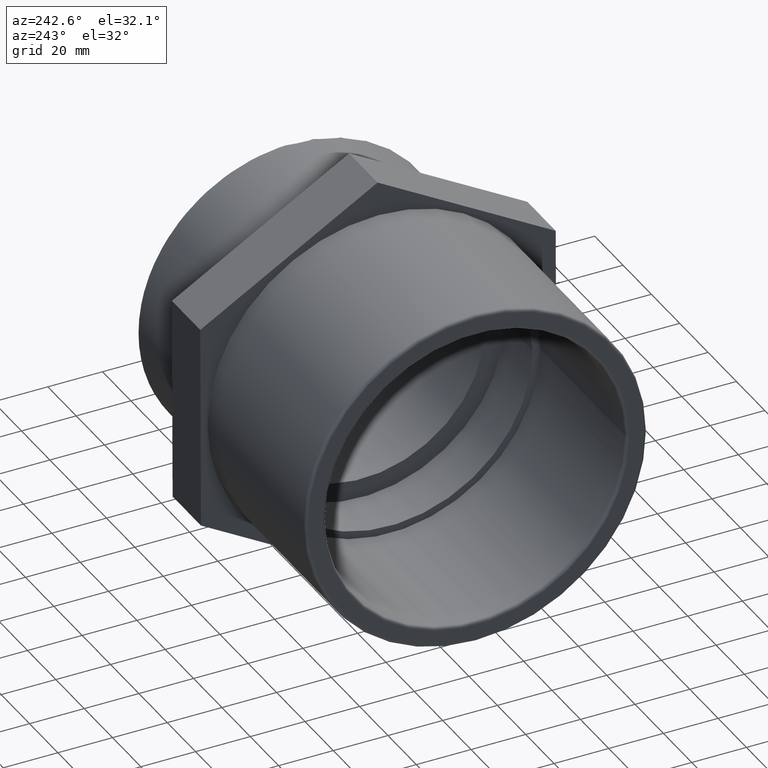
[diagram: clean part render]
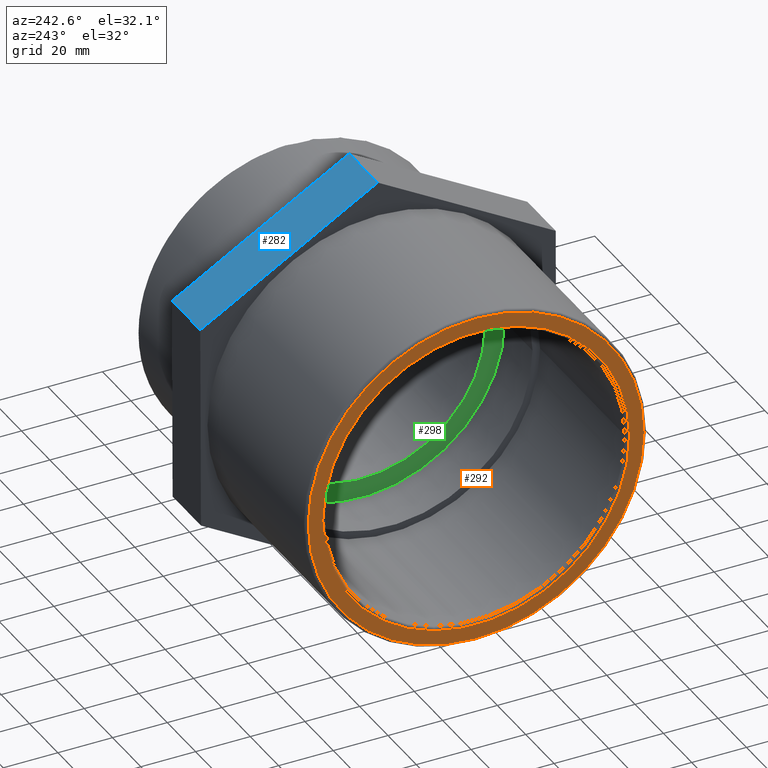
[diagram: same view with three faces highlighted in distinct colors, each labeled with its STEP entity id]
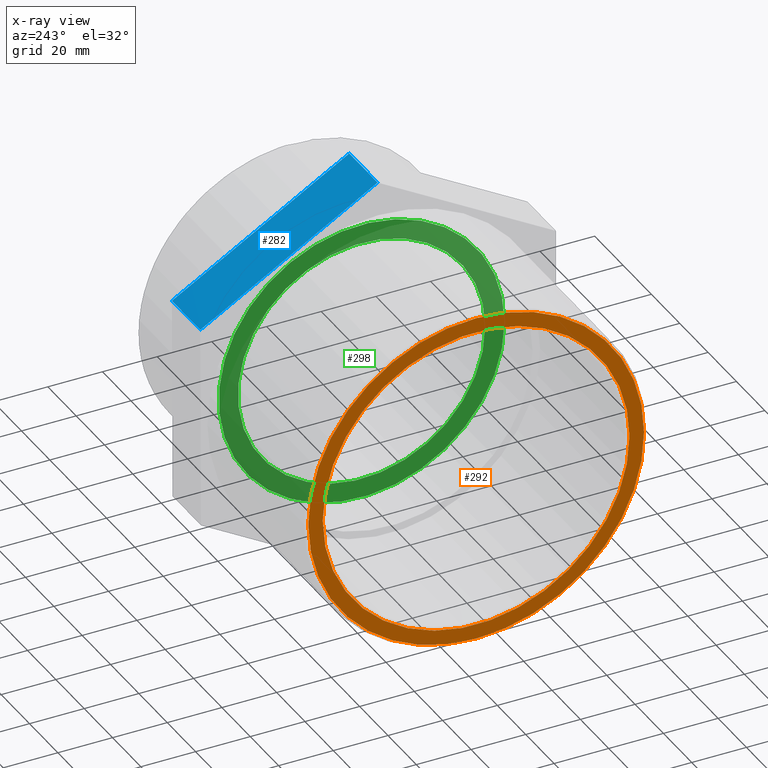
[diagram: x-ray of the same camera — body ghosted, the three highlighted faces saturated]
A machine part, auxiliary view with three faces highlighted in distinct colors.
The next image is the same camera in x-ray (body ghosted, the three faces saturated) — at least one of them is partly hidden behind the body in this view.
Their STEP definitions:

[orange] entity #292 — the highlighted planar face has unit normal (-1, -0, 0).
#26=FACE_BOUND('',#93,.T.);
#41=CIRCLE('',#321,56.1);
#43=CIRCLE('',#324,61.4);
#65=FACE_OUTER_BOUND('',#92,.T.);
#92=EDGE_LOOP('',(#240));
#93=EDGE_LOOP('',(#241));
#164=VERTEX_POINT('',#483);
#166=VERTEX_POINT('',#488);
#196=EDGE_CURVE('',#164,#164,#41,.T.);
#198=EDGE_CURVE('',#166,#166,#43,.T.);
#240=ORIENTED_EDGE('',*,*,#198,.F.);
#241=ORIENTED_EDGE('',*,*,#196,.F.);
#275=PLANE('',#323);
#292=ADVANCED_FACE('',(#65,#26),#275,.T.);
#321=AXIS2_PLACEMENT_3D('',#484,#394,#395);
#323=AXIS2_PLACEMENT_3D('',#487,#398,#399);
#324=AXIS2_PLACEMENT_3D('',#489,#400,#401);
#394=DIRECTION('center_axis',(-1.,-6.73555739531044E-16,0.));
#395=DIRECTION('ref_axis',(-6.73555739531044E-16,1.,6.12323399573677E-17));
#398=DIRECTION('center_axis',(-1.,-6.73555739531044E-16,0.));
#399=DIRECTION('ref_axis',(0.,0.,1.));
#400=DIRECTION('center_axis',(1.,6.73555739531044E-16,0.));
#401=DIRECTION('ref_axis',(-6.73555739531044E-16,1.,6.12323399573677E-17));
#483=CARTESIAN_POINT('',(-65.,-56.1,3.43513427160833E-15));
#484=CARTESIAN_POINT('Origin',(-65.,-3.18408167778312E-14,0.));
#487=CARTESIAN_POINT('Origin',(-65.,-55.,0.));
#488=CARTESIAN_POINT('',(-65.,-61.4,-1.12789970201471E-14));
#489=CARTESIAN_POINT('Origin',(-65.,-3.18408167778312E-14,0.));

[blue] entity #282 — the highlighted planar face has unit normal (-0, 0.5031, 0.8642).
#55=FACE_OUTER_BOUND('',#76,.T.);
#76=EDGE_LOOP('',(#212,#213,#214,#215));
#115=LINE('',#442,#133);
#117=LINE('',#446,#135);
#118=LINE('',#448,#136);
#119=LINE('',#449,#137);
#133=VECTOR('',#349,20.);
#135=VECTOR('',#353,75.0555349946514);
#136=VECTOR('',#354,20.);
#137=VECTOR('',#355,75.0555349946514);
#150=VERTEX_POINT('',#439);
#151=VERTEX_POINT('',#441);
#152=VERTEX_POINT('',#445);
#153=VERTEX_POINT('',#447);
#177=EDGE_CURVE('',#151,#150,#115,.T.);
#179=EDGE_CURVE('',#150,#152,#117,.T.);
#180=EDGE_CURVE('',#153,#152,#118,.T.);
#181=EDGE_CURVE('',#153,#151,#119,.T.);
#212=ORIENTED_EDGE('',*,*,#179,.T.);
#213=ORIENTED_EDGE('',*,*,#180,.F.);
#214=ORIENTED_EDGE('',*,*,#181,.T.);
#215=ORIENTED_EDGE('',*,*,#177,.T.);
#270=PLANE('',#305);
#282=ADVANCED_FACE('',(#55),#270,.T.);
#305=AXIS2_PLACEMENT_3D('',#444,#351,#352);
#349=DIRECTION('',(1.,5.92118946466731E-16,0.));
#351=DIRECTION('center_axis',(-2.97913461821952E-16,0.503131108368766,0.864210094705921));
#352=DIRECTION('ref_axis',(5.77315972805081E-16,-0.864210094705921,0.503131108368766));
#353=DIRECTION('',(-5.8209366944984E-16,0.864210094705921,-0.503131108368766));
#354=DIRECTION('',(1.,5.92118946466731E-16,0.));
#355=DIRECTION('',(5.82093669449841E-16,-0.864210094705921,0.503131108368766));
#439=CARTESIAN_POINT('',(24.,0.271646541004194,75.0550434114197));
#441=CARTESIAN_POINT('',(3.99999999999997,0.271646541004182,75.0550434114197));
#442=CARTESIAN_POINT('',(3.99999999999997,0.271646541004182,75.0550434114197));
#444=CARTESIAN_POINT('Origin',(3.99999999999992,65.1353975469354,37.2922689003501));
#445=CARTESIAN_POINT('',(23.9999999999999,65.1353975469354,37.2922689003501));
#446=CARTESIAN_POINT('',(24.,48.9194597954526,46.7329625281175));
#447=CARTESIAN_POINT('',(3.99999999999992,65.1353975469354,37.2922689003501));
#448=CARTESIAN_POINT('',(3.99999999999992,65.1353975469354,37.2922689003501));
#449=CARTESIAN_POINT('',(3.99999999999992,65.1353975469354,37.2922689003501));

[green] entity #298 — the highlighted planar face has unit normal (-1, -0, 0).
#32=FACE_BOUND('',#105,.T.);
#38=CIRCLE('',#315,45.212);
#48=CIRCLE('',#334,52.25);
#71=FACE_OUTER_BOUND('',#104,.T.);
#104=EDGE_LOOP('',(#252));
#105=EDGE_LOOP('',(#253));
#161=VERTEX_POINT('',#474);
#171=VERTEX_POINT('',#503);
#193=EDGE_CURVE('',#161,#161,#38,.T.);
#203=EDGE_CURVE('',#171,#171,#48,.T.);
#252=ORIENTED_EDGE('',*,*,#203,.T.);
#253=ORIENTED_EDGE('',*,*,#193,.F.);
#277=PLANE('',#335);
#298=ADVANCED_FACE('',(#71,#32),#277,.T.);
#315=AXIS2_PLACEMENT_3D('',#475,#382,#383);
#334=AXIS2_PLACEMENT_3D('',#504,#420,#421);
#335=AXIS2_PLACEMENT_3D('',#505,#422,#423);
#382=DIRECTION('center_axis',(-1.,-6.73555739531044E-16,0.));
#383=DIRECTION('ref_axis',(0.,0.,1.));
#420=DIRECTION('center_axis',(-1.,-6.73555739531044E-16,0.));
#421=DIRECTION('ref_axis',(0.,0.,1.));
#422=DIRECTION('center_axis',(-1.,-6.73555739531044E-16,0.));
#423=DIRECTION('ref_axis',(0.,0.,1.));
#474=CARTESIAN_POINT('',(15.8,-45.212,0.));
#475=CARTESIAN_POINT('Origin',(15.8,2.25824869762772E-14,0.));
#503=CARTESIAN_POINT('',(15.8,-52.25,0.));
#504=CARTESIAN_POINT('Origin',(15.8,2.25824869762772E-14,0.));
#505=CARTESIAN_POINT('Origin',(15.8,-45.212,0.));